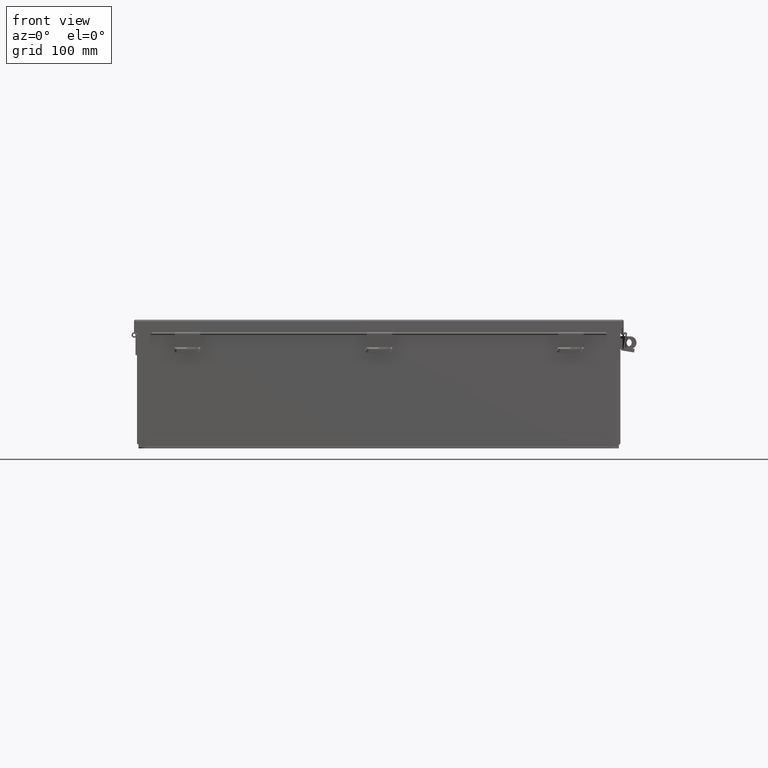
[diagram: clean part render]
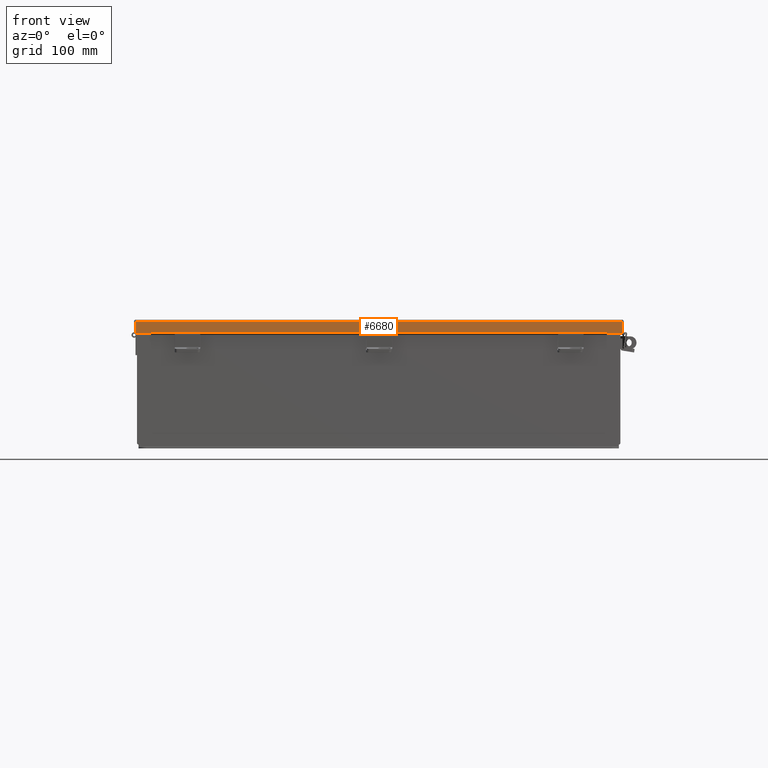
[diagram: same view with one face highlighted and labeled with its STEP entity id]
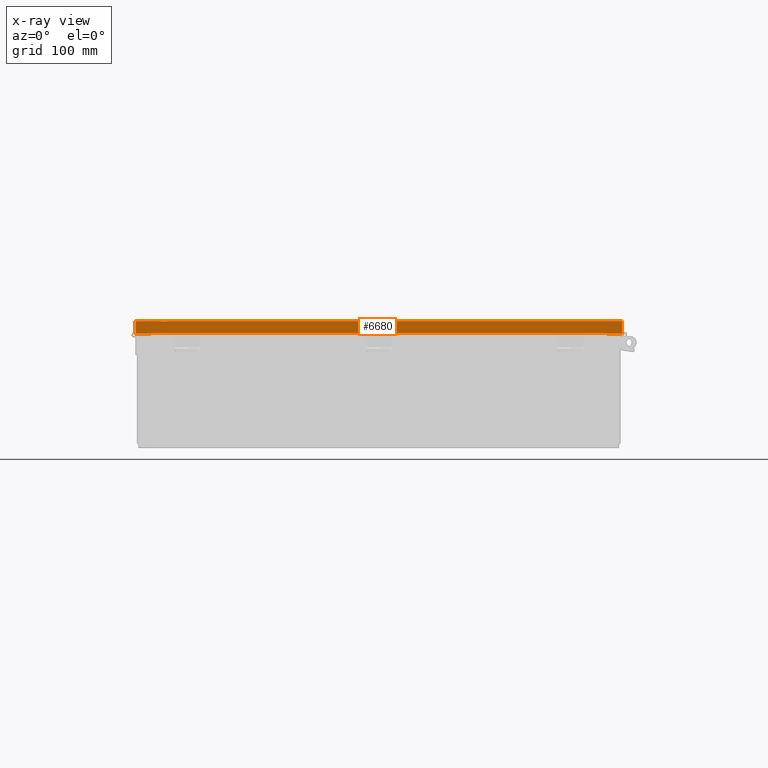
[diagram: x-ray of the same camera — body ghosted, the highlighted face saturated]
A machine part, front view. The second image highlights one B-rep face of the part: STEP entity #6680.
The next image is the same camera in x-ray: the body ghosted, the highlighted face saturated — about 0% of this face is hidden behind the body in this view.
In plain terms, the highlighted planar face has unit normal (0, 1, -0).
Its self-contained STEP definition (entity closure, byte-faithful):
#1965 = EDGE_CURVE ( 'NONE', #15621, #17362, #5126, .T. ) ;
#2318 = ORIENTED_EDGE ( 'NONE', *, *, #17789, .T. ) ;
#2830 = VECTOR ( 'NONE', #22078, 39.37007874015748100 ) ;
#2880 = LINE ( 'NONE', #21917, #2830 ) ;
#2946 = EDGE_LOOP ( 'NONE', ( #6861, #5613, #7267, #4239, #3838, #2318, #24496, #9210 ) ) ;
#3084 = EDGE_CURVE ( 'NONE', #15621, #6339, #24594, .T. ) ;
#3183 = AXIS2_PLACEMENT_3D ( 'NONE', #24870, #18001, #3730 ) ;
#3209 = FACE_OUTER_BOUND ( 'NONE', #2946, .T. ) ;
#3236 = EDGE_CURVE ( 'NONE', #11388, #11638, #23456, .T. ) ;
#3316 = EDGE_CURVE ( 'NONE', #11388, #6179, #22810, .T. ) ;
#3595 = EDGE_CURVE ( 'NONE', #17362, #11638, #19670, .T. ) ;
#3730 = DIRECTION ( 'NONE',  ( 0.0000000000000000000, -3.569293475308493700E-015, 1.000000000000000000 ) ) ;
#3838 = ORIENTED_EDGE ( 'NONE', *, *, #3084, .T. ) ;
#4239 = ORIENTED_EDGE ( 'NONE', *, *, #1965, .F. ) ;
#4395 = EDGE_CURVE ( 'NONE', #6179, #4742, #13235, .T. ) ;
#4742 = VERTEX_POINT ( 'NONE', #22509 ) ;
#4929 = CARTESIAN_POINT ( 'NONE',  ( 1.094873453710755500E-015, -12.15625000000000400, 0.6123000000000080600 ) ) ;
#5126 = LINE ( 'NONE', #5637, #6025 ) ;
#5613 = ORIENTED_EDGE ( 'NONE', *, *, #3236, .T. ) ;
#5637 = CARTESIAN_POINT ( 'NONE',  ( -12.15625000000003000, -12.15625000000000400, 0.01300000000000010700 ) ) ;
#6025 = VECTOR ( 'NONE', #17276, 39.37007874015748100 ) ;
#6136 = CARTESIAN_POINT ( 'NONE',  ( 11.32447893218816900, -12.15625000000000400, 0.6123000000000005100 ) ) ;
#6179 = VERTEX_POINT ( 'NONE', #21141 ) ;
#6339 = VERTEX_POINT ( 'NONE', #24188 ) ;
#6608 = DIRECTION ( 'NONE',  ( -1.000000000000000000, -8.989114220797865300E-017, 2.809098193999883300E-018 ) ) ;
#6680 = ADVANCED_FACE ( 'NONE', ( #3209 ), #20223, .F. ) ;
#6772 = CARTESIAN_POINT ( 'NONE',  ( 1.094873453710755500E-015, -12.15625000000000400, 0.6123000000000080600 ) ) ;
#6861 = ORIENTED_EDGE ( 'NONE', *, *, #3316, .F. ) ;
#7031 = VERTEX_POINT ( 'NONE', #6136 ) ;
#7267 = ORIENTED_EDGE ( 'NONE', *, *, #3595, .F. ) ;
#8737 = CARTESIAN_POINT ( 'NONE',  ( -11.32447893218816400, -12.15625000000000400, 0.5967115427318793200 ) ) ;
#9210 = ORIENTED_EDGE ( 'NONE', *, *, #4395, .F. ) ;
#9304 = CARTESIAN_POINT ( 'NONE',  ( -12.07447893218816400, -12.15625000000000400, 0.6122999999999994000 ) ) ;
#9833 = CARTESIAN_POINT ( 'NONE',  ( 12.07447893218816900, -12.15625000000000200, -4.370956789862821100E-014 ) ) ;
#11388 = VERTEX_POINT ( 'NONE', #21021 ) ;
#11638 = VERTEX_POINT ( 'NONE', #9304 ) ;
#13019 = VECTOR ( 'NONE', #15116, 39.37007874015748100 ) ;
#13061 = LINE ( 'NONE', #6772, #13378 ) ;
#13235 = LINE ( 'NONE', #8737, #13019 ) ;
#13378 = VECTOR ( 'NONE', #6608, 39.37007874015748100 ) ;
#13629 = DIRECTION ( 'NONE',  ( 1.401985044024136100E-013, 1.401985044024130100E-013, -1.000000000000000000 ) ) ;
#15116 = DIRECTION ( 'NONE',  ( 1.000000000000000000, 3.215975411700707400E-030, -0.0000000000000000000 ) ) ;
#15330 = DIRECTION ( 'NONE',  ( -0.0000000000000000000, -3.569293475308494500E-015, 1.000000000000000000 ) ) ;
#15470 = CARTESIAN_POINT ( 'NONE',  ( -12.07447893218816400, -12.15625000000000400, 0.01300000000000010700 ) ) ;
#15621 = VERTEX_POINT ( 'NONE', #24041 ) ;
#15622 = CARTESIAN_POINT ( 'NONE',  ( -12.07447893218816400, -12.15625000000000200, -1.092739197465705300E-015 ) ) ;
#15661 = EDGE_CURVE ( 'NONE', #4742, #7031, #2880, .T. ) ;
#16843 = DIRECTION ( 'NONE',  ( -1.000000000000000000, -8.989114220797865300E-017, 2.809098193999883300E-018 ) ) ;
#17276 = DIRECTION ( 'NONE',  ( -1.000000000000000000, -8.989114220797829500E-017, -8.989114220797575600E-017 ) ) ;
#17362 = VERTEX_POINT ( 'NONE', #15470 ) ;
#17789 = EDGE_CURVE ( 'NONE', #6339, #7031, #13061, .T. ) ;
#18001 = DIRECTION ( 'NONE',  ( -8.989114220797262500E-017, 1.000000000000000000, 3.569293475308493700E-015 ) ) ;
#18415 = DIRECTION ( 'NONE',  ( 0.0000000000000000000, -3.569293475308494500E-015, 1.000000000000000000 ) ) ;
#19670 = LINE ( 'NONE', #15622, #19692 ) ;
#19692 = VECTOR ( 'NONE', #15330, 39.37007874015748100 ) ;
#20223 = PLANE ( 'NONE',  #3183 ) ;
#21021 = CARTESIAN_POINT ( 'NONE',  ( -11.32447893218816400, -12.15625000000000400, 0.6122999999999994000 ) ) ;
#21141 = CARTESIAN_POINT ( 'NONE',  ( -11.32447893218816400, -12.15625000000000400, 0.5967115427318793200 ) ) ;
#21595 = CARTESIAN_POINT ( 'NONE',  ( -11.32447893218816400, -12.15625000000000500, 0.6122999999999994000 ) ) ;
#21917 = CARTESIAN_POINT ( 'NONE',  ( 11.32447893218816900, -12.15625000000000400, 0.5967115427318793200 ) ) ;
#22078 = DIRECTION ( 'NONE',  ( 0.0000000000000000000, 1.846427556282924300E-029, 1.000000000000000000 ) ) ;
#22509 = CARTESIAN_POINT ( 'NONE',  ( 11.32447893218816900, -12.15625000000000400, 0.5967115427318793200 ) ) ;
#22712 = VECTOR ( 'NONE', #13629, 39.37007874015748100 ) ;
#22810 = LINE ( 'NONE', #21595, #22712 ) ;
#23157 = VECTOR ( 'NONE', #16843, 39.37007874015748100 ) ;
#23456 = LINE ( 'NONE', #4929, #23157 ) ;
#24041 = CARTESIAN_POINT ( 'NONE',  ( 12.07447893218816900, -12.15625000000000200, 0.01300000000000229300 ) ) ;
#24188 = CARTESIAN_POINT ( 'NONE',  ( 12.07447893218816900, -12.15625000000000400, 0.6123000000000005100 ) ) ;
#24496 = ORIENTED_EDGE ( 'NONE', *, *, #15661, .F. ) ;
#24509 = VECTOR ( 'NONE', #18415, 39.37007874015748100 ) ;
#24594 = LINE ( 'NONE', #9833, #24509 ) ;
#24870 = CARTESIAN_POINT ( 'NONE',  ( 1.092739197465705300E-015, -12.15625000000000200, -4.261682870116250900E-014 ) ) ;